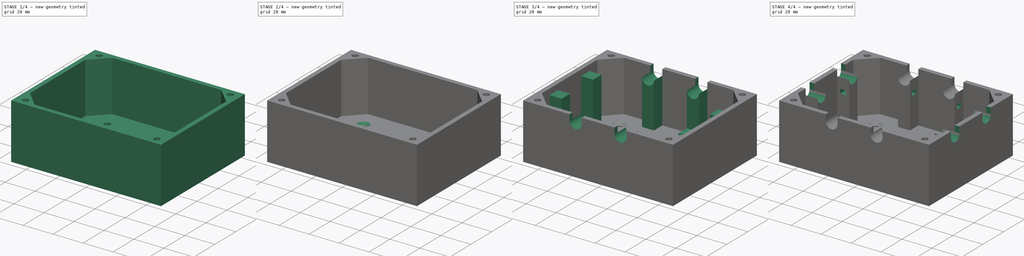
[diagram: build sequence overview — one tinted view per stage of 4, left to right]
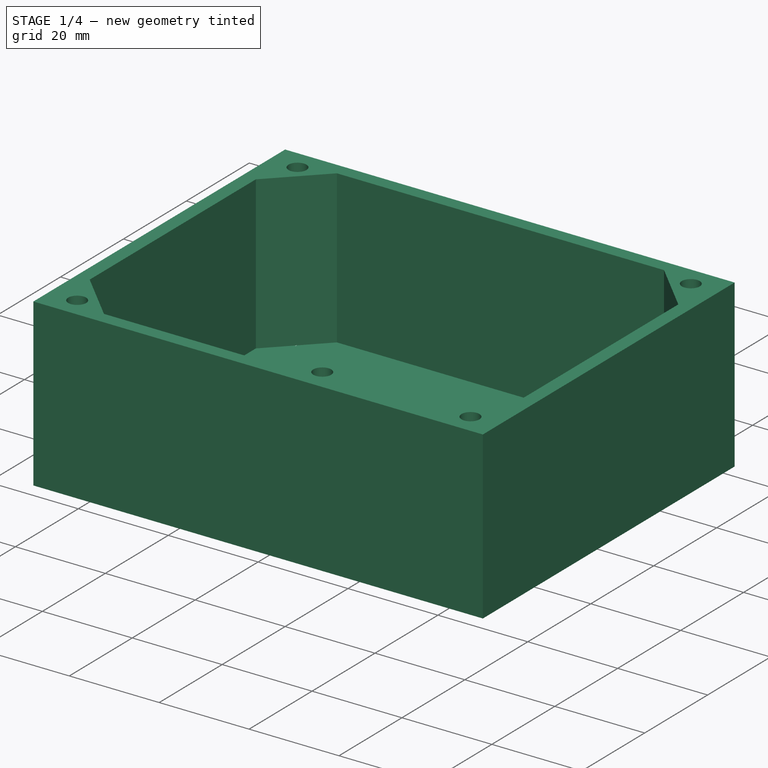
[diagram: stage 1 of 4 — iso view after this stage's code; geometry added in this stage tinted green]
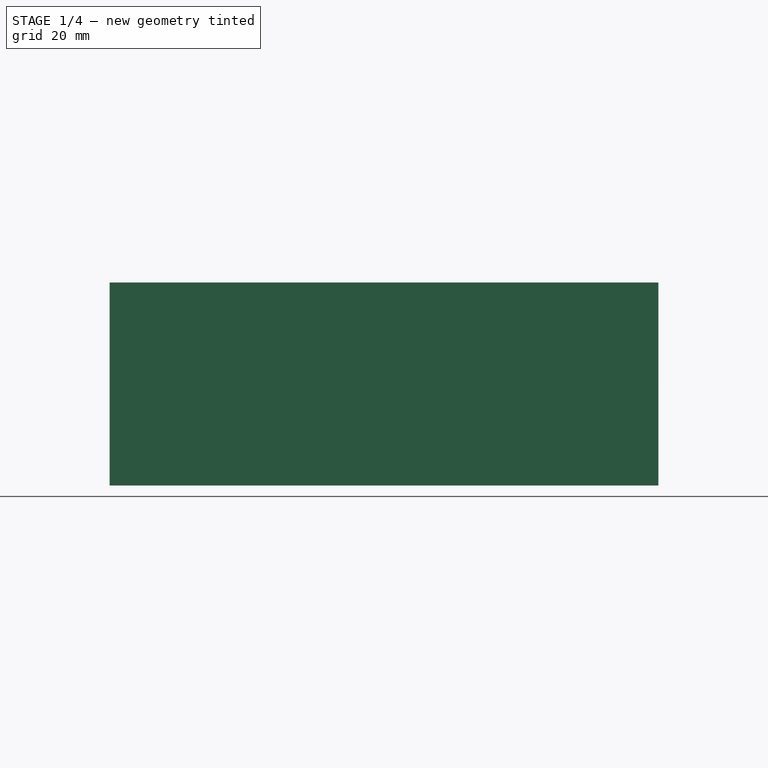
[diagram: stage 1 of 4 — front view after this stage's code; geometry added in this stage tinted green]
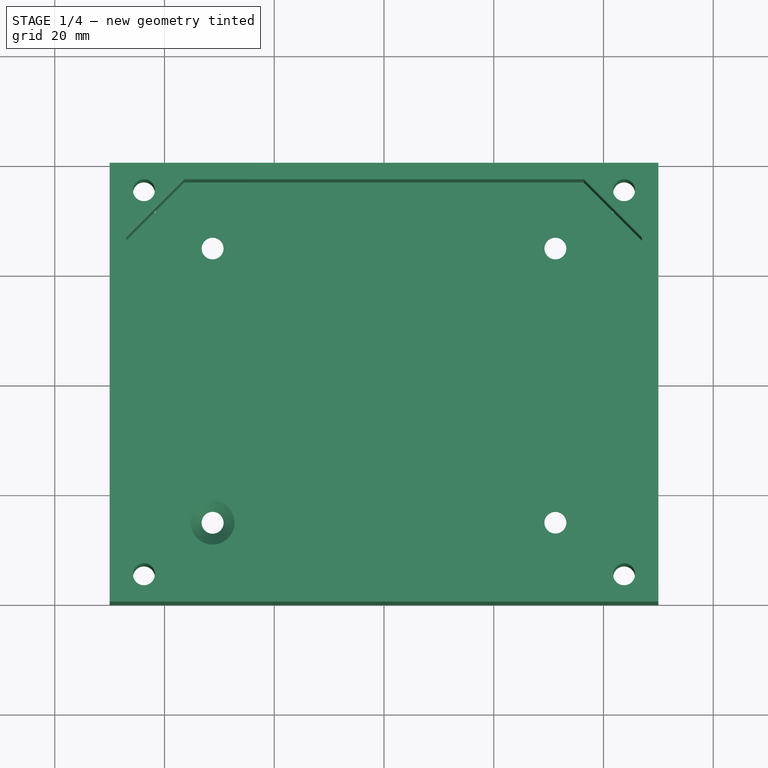
[diagram: stage 1 of 4 — top view after this stage's code; geometry added in this stage tinted green]
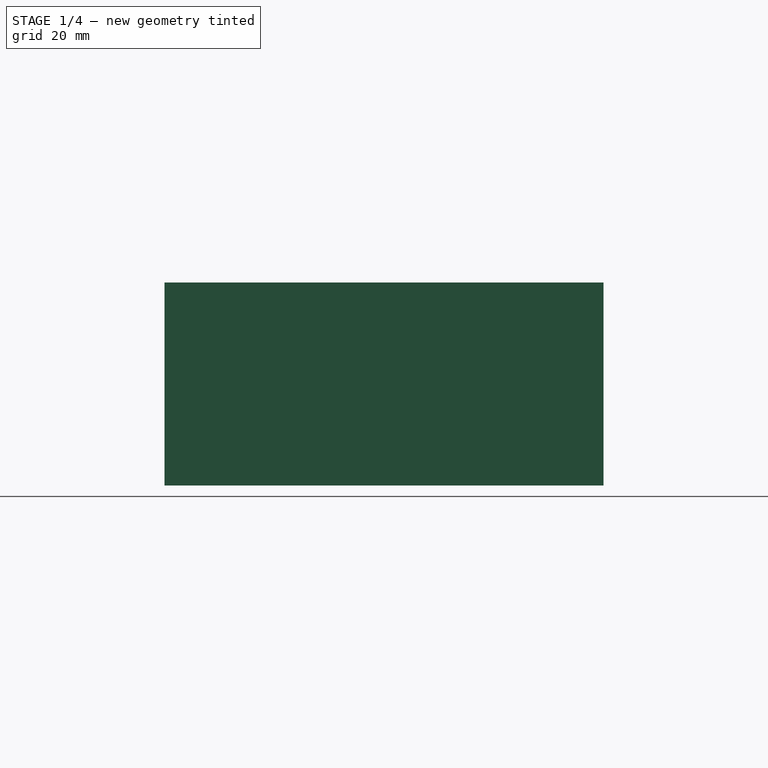
[diagram: stage 1 of 4 — right view after this stage's code; geometry added in this stage tinted green]
FCSTD DOCUMENT  (FreeCAD 1.0R39319 (Git))
Label: junction_box
License: All rights reserved
LicenseURL: http://en.wikipedia.org/wiki/All_rights_reserved
objects: Sketcher::SketchObject×7, PartDesign::Chamfer×4, PartDesign::Pocket×4, PartDesign::Pad×3, PartDesign::Body×1
note: 48 computed .brp shape members not serialized (recipe doc carries the construction recipe); baked Part::Feature solids carry a one-line shape summary decoded from their .brp

FEATURE [Sketcher::SketchObject] Sketch
  ArcFitTolerance = 0
  AttachmentSupport = -> [XY_Plane]
  FullyConstrained = false
  MakeInternals = false
  MapMode = 5
  sketch-geometry (17):
    g0: LineSegment StartX=-50 StartY=-40 StartZ=0 EndX=50 EndY=-40 EndZ=0
    g1: LineSegment StartX=50 StartY=-40 StartZ=0 EndX=50 EndY=40 EndZ=0
    g2: LineSegment StartX=50 StartY=40 StartZ=0 EndX=-50 EndY=40 EndZ=0
    g3: LineSegment StartX=-50 StartY=40 StartZ=0 EndX=-50 EndY=-40 EndZ=0
    g4: LineSegment StartX=-47 StartY=-26.3934 StartZ=0 EndX=-47 EndY=26.3934 EndZ=0
    g5: LineSegment StartX=-47 StartY=26.3934 StartZ=0 EndX=-36.3934 EndY=37 EndZ=0
    g6: LineSegment StartX=-36.3934 StartY=37 StartZ=0 EndX=36.3934 EndY=37 EndZ=0
    g7: LineSegment StartX=36.3934 StartY=37 StartZ=0 EndX=47 EndY=26.3934 EndZ=0
    g8: LineSegment StartX=47 StartY=26.3934 StartZ=0 EndX=47 EndY=-26.3934 EndZ=0
    g9: LineSegment StartX=47 StartY=-26.3934 StartZ=0 EndX=36.3934 EndY=-37 EndZ=0
    g10: LineSegment StartX=36.3934 StartY=-37 StartZ=0 EndX=-36.3934 EndY=-37 EndZ=0
    g11: LineSegment StartX=-36.3934 StartY=-37 StartZ=0 EndX=-47 EndY=-26.3934 EndZ=0
    g12: Circle CenterX=-43.753 CenterY=-35.0024 CenterZ=0 NormalX=0 NormalY=0 NormalZ=1 AngleXU=0 Radius=2
    g13: LineSegment [constr] StartX=0 StartY=0 StartZ=0 EndX=-50 EndY=-40 EndZ=0
    g14: Circle CenterX=43.753 CenterY=35.0024 CenterZ=0 NormalX=0 NormalY=0 NormalZ=1 AngleXU=0 Radius=2
    g15: Circle CenterX=-43.753 CenterY=35.0024 CenterZ=0 NormalX=0 NormalY=0 NormalZ=1 AngleXU=0 Radius=2
    g16: Circle CenterX=43.753 CenterY=-35.0024 CenterZ=0 NormalX=0 NormalY=0 NormalZ=1 AngleXU=0 Radius=2
  constraints (47):
    c: Coincident(g0,g1)
    c: Coincident(g1,g2)
    c: Coincident(g2,g3)
    c: Coincident(g3,g0)
    c: Horizontal(g0)
    c: Horizontal(g2)
    c: Vertical(g1)
    c: Vertical(g3)
    c: Vertical(g4)
    c: Coincident(g4,g5)
    c: Coincident(g5,g6)
    c: Horizontal(g6)
    c: Coincident(g6,g7)
    c: Coincident(g7,g8)
    c: Vertical(g8)
    c: Coincident(g8,g9)
    c: Coincident(g9,g10)
    c: Horizontal(g10)
    c: Coincident(g10,g11)
    c: Coincident(g11,g4)
    c: DistanceX(g0,g0) = 100
    c: DistanceY(g3,g3) = 80
    c: Symmetric(g0,g1,g-1)
    c: Symmetric(g4,g7,g-1)
    c: Parallel(g11,g7)
    c: Parallel(g5,g9)
    c: Perpendicular(g11,g5)
    c: Equal(g8,g4)
    c: Equal(g6,g10)
    c: Angle(g10,g11) = 2.35619
    c: Equal(g5,g11)
    c: Equal(g11,g9)
    c: Equal(g9,g7)
    c: DistanceX(g0,g4) = 3
    c: DistanceY(g0,g10) = 3
    c: Distance(g11) = 15
    c: Radius(g12) = 2
    c: Coincident(g13,g-1)
    c: Coincident(g13,g0)
    c: PointOnObject(g12,g13)
    c: Distance(g0,g12) = 8
    c: Radius(g14) = 2
    c: Symmetric(g14,g12,g-1)
    c: Radius(g15) = 2
    c: Symmetric(g15,g12,g-1)
    c: Radius(g16) = 2
    c: Symmetric(g12,g16,g-2)
FEATURE [PartDesign::Pad] Pad
  AllowMultiFace = false
  Direction = (1,1,1)
  Length = 34
  Length2 = 100
  Profile = -> Sketch
  Suppressed = false
  Type = 0
FEATURE [Sketcher::SketchObject] Sketch001
  ArcFitTolerance = 0
  AttachmentSupport = -> [Pad]
  FullyConstrained = false
  MakeInternals = false
  MapMode = 5
  Placement = pos=(0,0,0) rot=(1,0,0;3.14159rad)
  sketch-geometry (37):
    g0: LineSegment StartX=-50 StartY=-40 StartZ=0 EndX=50 EndY=-40 EndZ=0
    g1: LineSegment StartX=50 StartY=-40 StartZ=0 EndX=50 EndY=40 EndZ=0
    g2: LineSegment StartX=50 StartY=40 StartZ=0 EndX=-50 EndY=40 EndZ=0
    g3: LineSegment StartX=-50 StartY=40 StartZ=0 EndX=-50 EndY=-40 EndZ=0
    g4: LineSegment StartX=-39.7116 StartY=-35.0024 StartZ=0 EndX=-41.7323 EndY=-31.5024 EndZ=0
    g5: LineSegment StartX=-41.7323 StartY=-31.5024 StartZ=0 EndX=-45.7738 EndY=-31.5024 EndZ=0
    g6: LineSegment StartX=-45.7738 StartY=-31.5024 StartZ=0 EndX=-47.7945 EndY=-35.0024 EndZ=0
    g7: LineSegment StartX=-47.7945 StartY=-35.0024 StartZ=0 EndX=-45.7738 EndY=-38.5024 EndZ=0
    g8: LineSegment StartX=-45.7738 StartY=-38.5024 StartZ=0 EndX=-41.7323 EndY=-38.5024 EndZ=0
    g9: LineSegment StartX=-41.7323 StartY=-38.5024 StartZ=0 EndX=-39.7116 EndY=-35.0024 EndZ=0
    g10: Circle [constr] CenterX=-43.753 CenterY=-35.0024 CenterZ=0 NormalX=0 NormalY=0 NormalZ=1 AngleXU=0 Radius=4.04145
    g11: LineSegment [constr] StartX=-50 StartY=-40 StartZ=0 EndX=0 EndY=0 EndZ=0
    g12: LineSegment StartX=47.7945 StartY=35.0024 StartZ=0 EndX=45.7738 EndY=38.5024 EndZ=0
    g13: LineSegment StartX=45.7738 StartY=38.5024 StartZ=0 EndX=41.7323 EndY=38.5024 EndZ=0
    g14: LineSegment StartX=41.7323 StartY=38.5024 StartZ=0 EndX=39.7116 EndY=35.0024 EndZ=0
    g15: LineSegment StartX=39.7116 StartY=35.0024 StartZ=0 EndX=41.7323 EndY=31.5024 EndZ=0
    g16: LineSegment StartX=41.7323 StartY=31.5024 StartZ=0 EndX=45.7738 EndY=31.5024 EndZ=0
    g17: LineSegment StartX=45.7738 StartY=31.5024 StartZ=0 EndX=47.7945 EndY=35.0024 EndZ=0
    g18: Circle [constr] CenterX=43.753 CenterY=35.0024 CenterZ=0 NormalX=0 NormalY=0 NormalZ=1 AngleXU=0 Radius=4.04145
    g19: LineSegment StartX=-39.7116 StartY=35.0024 StartZ=0 EndX=-41.7323 EndY=38.5024 EndZ=0
    g20: LineSegment StartX=-41.7323 StartY=38.5024 StartZ=0 EndX=-45.7738 EndY=38.5024 EndZ=0
    g21: LineSegment StartX=-45.7738 StartY=38.5024 StartZ=0 EndX=-47.7945 EndY=35.0024 EndZ=0
    g22: LineSegment StartX=-47.7945 StartY=35.0024 StartZ=0 EndX=-45.7738 EndY=31.5024 EndZ=0
    g23: LineSegment StartX=-45.7738 StartY=31.5024 StartZ=0 EndX=-41.7323 EndY=31.5024 EndZ=0
    g24: LineSegment StartX=-41.7323 StartY=31.5024 StartZ=0 EndX=-39.7116 EndY=35.0024 EndZ=0
    g25: Circle [constr] CenterX=-43.753 CenterY=35.0024 CenterZ=0 NormalX=0 NormalY=0 NormalZ=1 AngleXU=0 Radius=4.04145
    g26: LineSegment StartX=47.7945 StartY=-35.0024 StartZ=0 EndX=45.7738 EndY=-31.5024 EndZ=0
    g27: LineSegment StartX=45.7738 StartY=-31.5024 StartZ=0 EndX=41.7323 EndY=-31.5024 EndZ=0
    g28: LineSegment StartX=41.7323 StartY=-31.5024 StartZ=0 EndX=39.7116 EndY=-35.0024 EndZ=0
    g29: LineSegment StartX=39.7116 StartY=-35.0024 StartZ=0 EndX=41.7323 EndY=-38.5024 EndZ=0
    g30: LineSegment StartX=41.7323 StartY=-38.5024 StartZ=0 EndX=45.7738 EndY=-38.5024 EndZ=0
    g31: LineSegment StartX=45.7738 StartY=-38.5024 StartZ=0 EndX=47.7945 EndY=-35.0024 EndZ=0
    g32: Circle [constr] CenterX=43.753 CenterY=-35.0024 CenterZ=0 NormalX=0 NormalY=0 NormalZ=1 AngleXU=0 Radius=4.04145
    g33: Circle CenterX=-31.2348 CenterY=-24.9878 CenterZ=0 NormalX=0 NormalY=0 NormalZ=1 AngleXU=0 Radius=2
    g34: Circle CenterX=31.2348 CenterY=24.9878 CenterZ=0 NormalX=0 NormalY=0 NormalZ=1 AngleXU=0 Radius=2
    g35: Circle CenterX=-31.2348 CenterY=24.9878 CenterZ=0 NormalX=0 NormalY=0 NormalZ=1 AngleXU=0 Radius=2
    g36: Circle CenterX=31.2348 CenterY=-24.9878 CenterZ=0 NormalX=0 NormalY=0 NormalZ=1 AngleXU=0 Radius=2
  constraints (87):
    c: Coincident(g0,g1)
    c: Coincident(g1,g2)
    c: Coincident(g2,g3)
    c: Coincident(g3,g0)
    c: Horizontal(g0)
    c: Horizontal(g2)
    c: Vertical(g1)
    c: Vertical(g3)
    c: DistanceX(g0,g0) = 100
    c: DistanceY(g3,g3) = 80
    c: Symmetric(g0,g1,g-1)
    c: Coincident(g4,g5)
    c: Coincident(g5,g6)
    c: Coincident(g6,g7)
    c: Coincident(g7,g8)
    c: Coincident(g8,g9)
    c: Coincident(g9,g4)
    c: Equal(g4, g5-g9) x5
    c: PointOnObject(g4,g10)
    c: PointOnObject(g5,g10)
    c: PointOnObject(g6,g10)
    c: PointOnObject(g7,g10)
    c: PointOnObject(g8,g10)
    c: PointOnObject(g9,g10)
    c: Horizontal(g8)
    c: Coincident(g11,g0)
    c: Coincident(g11,g-1)
    c: PointOnObject(g10,g11)
    c: Distance(g0,g10) = 8
    c: DistanceY(g7,g5) = 7
    c: Coincident(g12,g13)
    c: Coincident(g13,g14)
    c: Coincident(g14,g15)
    c: Coincident(g15,g16)
    c: Coincident(g16,g17)
    c: Coincident(g17,g12)
    c: Equal(g12, g13-g17) x5
    c: PointOnObject(g12,g18)
    c: PointOnObject(g13,g18)
    c: PointOnObject(g14,g18)
    c: PointOnObject(g15,g18)
    c: PointOnObject(g16,g18)
    c: PointOnObject(g17,g18)
    c: Horizontal(g16)
    c: DistanceY(g15,g13) = 7
    c: Symmetric(g18,g10,g-1)
    c: Coincident(g19,g20)
    c: Coincident(g20,g21)
    c: Coincident(g21,g22)
    c: Coincident(g22,g23)
    c: Coincident(g23,g24)
    c: Coincident(g24,g19)
    c: Equal(g19, g20-g24) x5
    c: PointOnObject(g19,g25)
    c: PointOnObject(g20,g25)
    c: PointOnObject(g21,g25)
    c: PointOnObject(g22,g25)
    c: PointOnObject(g23,g25)
    c: PointOnObject(g24,g25)
    c: Coincident(g26,g27)
    c: Coincident(g27,g28)
    c: Coincident(g28,g29)
    c: Coincident(g29,g30)
    c: Coincident(g30,g31)
    c: Coincident(g31,g26)
    c: Equal(g26, g27-g31) x5
    c: PointOnObject(g26,g32)
    c: PointOnObject(g27,g32)
    c: PointOnObject(g28,g32)
    c: PointOnObject(g29,g32)
    c: PointOnObject(g30,g32)
    c: PointOnObject(g31,g32)
    c: Horizontal(g30)
    c: Horizontal(g23)
    c: DistanceY(g22,g20) = 7
    c: DistanceY(g29,g27) = 7
    c: Symmetric(g25,g10,g-1)
    c: Symmetric(g32,g10,g-2)
    c: PointOnObject(g33,g11)
    c: Radius(g33) = 2
    c: Distance(g33,g-1) = 40
    c: Radius(g34) = 2
    c: Symmetric(g33,g34,g-1)
    c: Radius(g36) = 2
    c: Equal(g36,g35)
    c: Symmetric(g33,g36,g-2)
    c: Symmetric(g35,g33,g-1)
FEATURE [PartDesign::Pad] Pad001
  AllowMultiFace = false
  BaseFeature = -> Pad
  Direction = (1,1,1)
  Length = 3
  Length2 = 100
  Profile = -> Sketch001
  Suppressed = false
  Type = 0
FEATURE [PartDesign::Chamfer] Chamfer
  Angle = 45
  Base = -> Pad001 [Edge154]
  BaseFeature = -> Pad001
  ChamferType = 0
  FlipDirection = false
  Refine = true
  Size = 2
  Size2 = 1
  SupportTransform = false
  Suppressed = false
  UseAllEdges = false
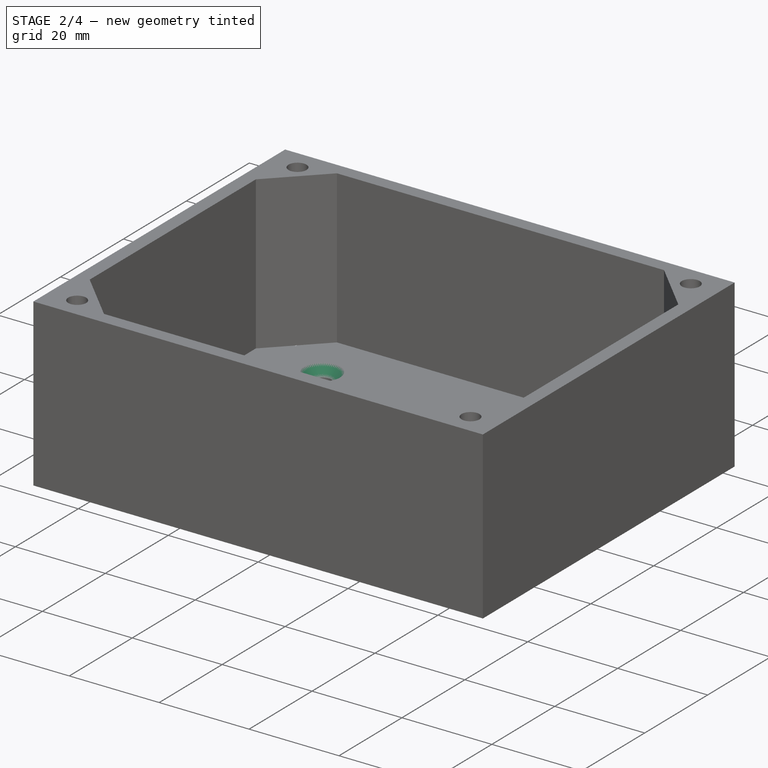
[diagram: stage 2 of 4 — iso view after this stage's code; geometry added in this stage tinted green]
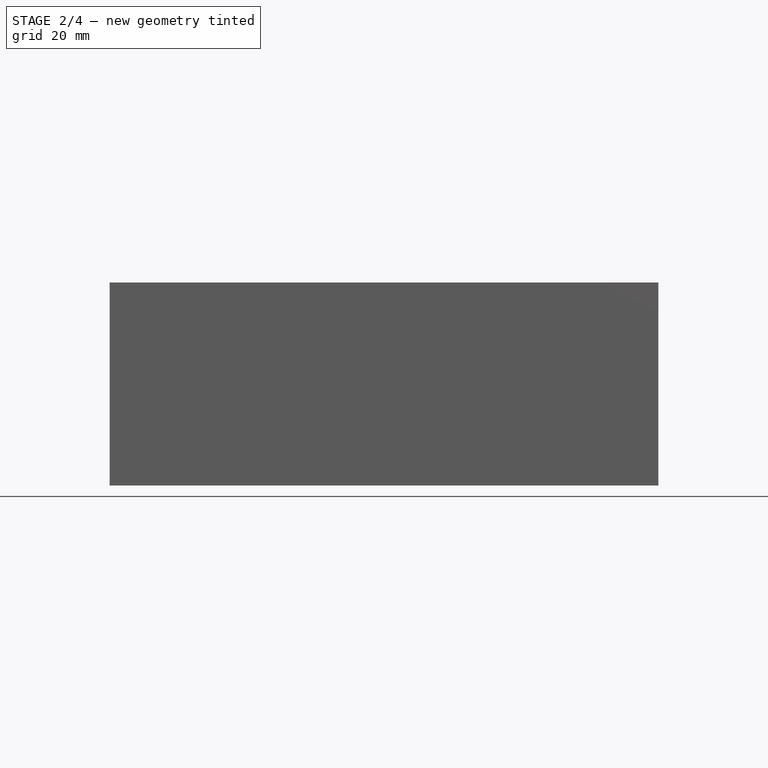
[diagram: stage 2 of 4 — front view after this stage's code; geometry added in this stage tinted green]
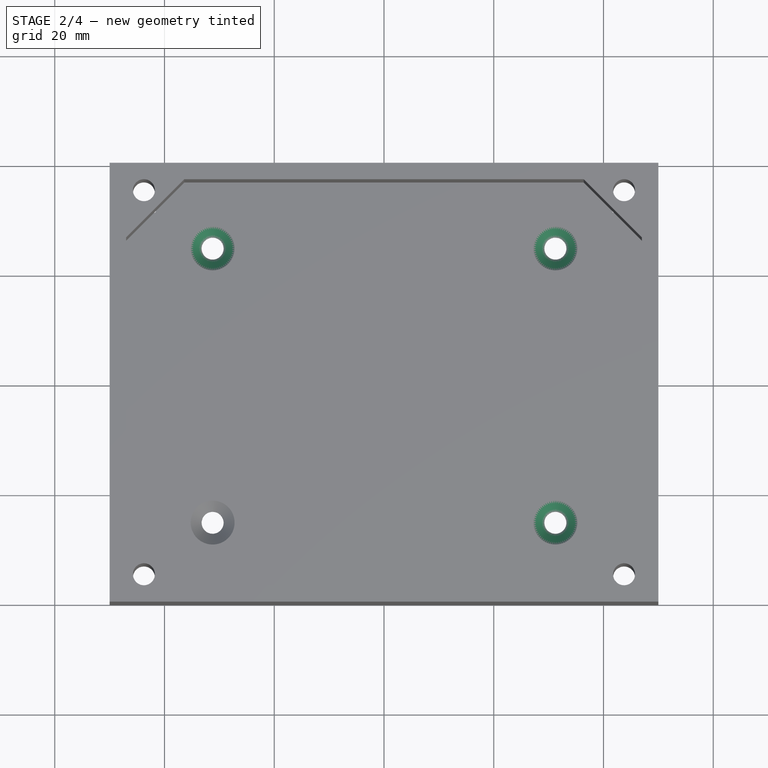
[diagram: stage 2 of 4 — top view after this stage's code; geometry added in this stage tinted green]
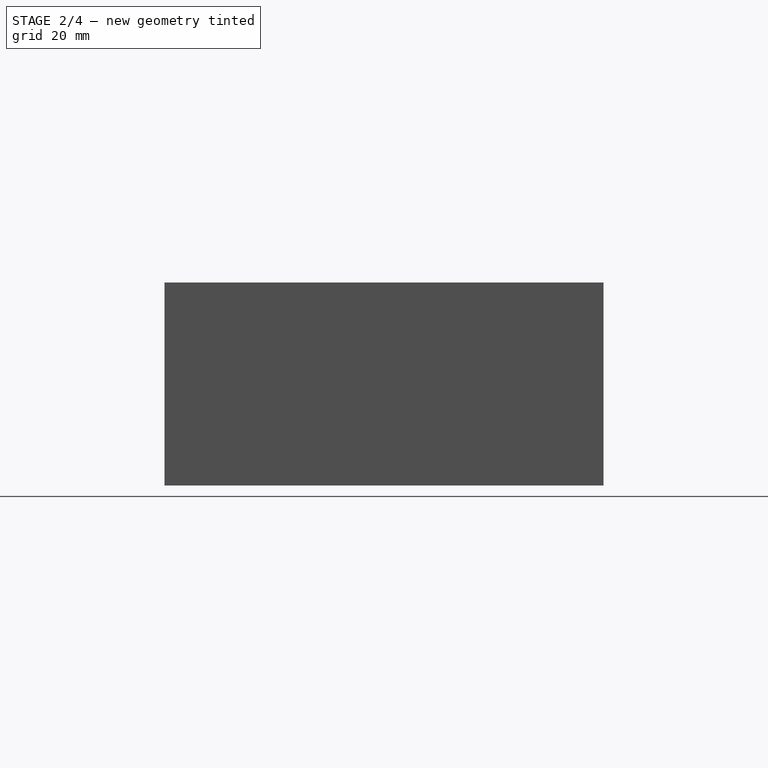
[diagram: stage 2 of 4 — right view after this stage's code; geometry added in this stage tinted green]
FEATURE [PartDesign::Chamfer] Chamfer001
  Angle = 45
  Base = -> Chamfer [Edge59]
  BaseFeature = -> Chamfer
  ChamferType = 0
  FlipDirection = false
  Refine = true
  Size = 2
  Size2 = 1
  SupportTransform = false
  Suppressed = false
  UseAllEdges = false
FEATURE [PartDesign::Chamfer] Chamfer002
  Angle = 45
  Base = -> Chamfer001 [Edge24]
  BaseFeature = -> Chamfer001
  ChamferType = 0
  FlipDirection = false
  Refine = true
  Size = 2
  Size2 = 1
  SupportTransform = false
  Suppressed = false
  UseAllEdges = false
FEATURE [PartDesign::Chamfer] Chamfer003
  Angle = 45
  Base = -> Chamfer002 [Edge24]
  BaseFeature = -> Chamfer002
  ChamferType = 0
  FlipDirection = false
  Refine = true
  Size = 2
  Size2 = 1
  SupportTransform = false
  Suppressed = false
  UseAllEdges = false
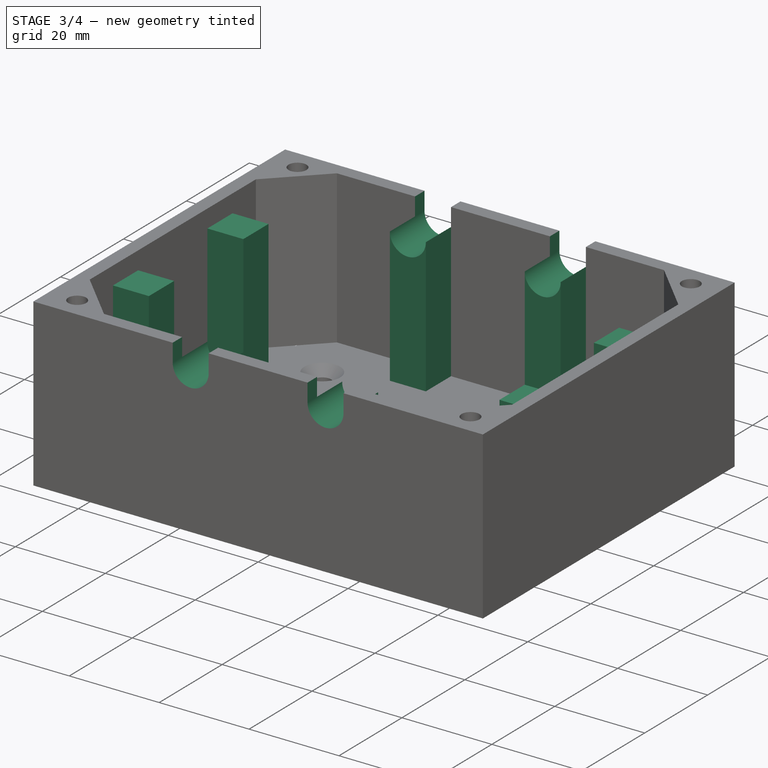
[diagram: stage 3 of 4 — iso view after this stage's code; geometry added in this stage tinted green]
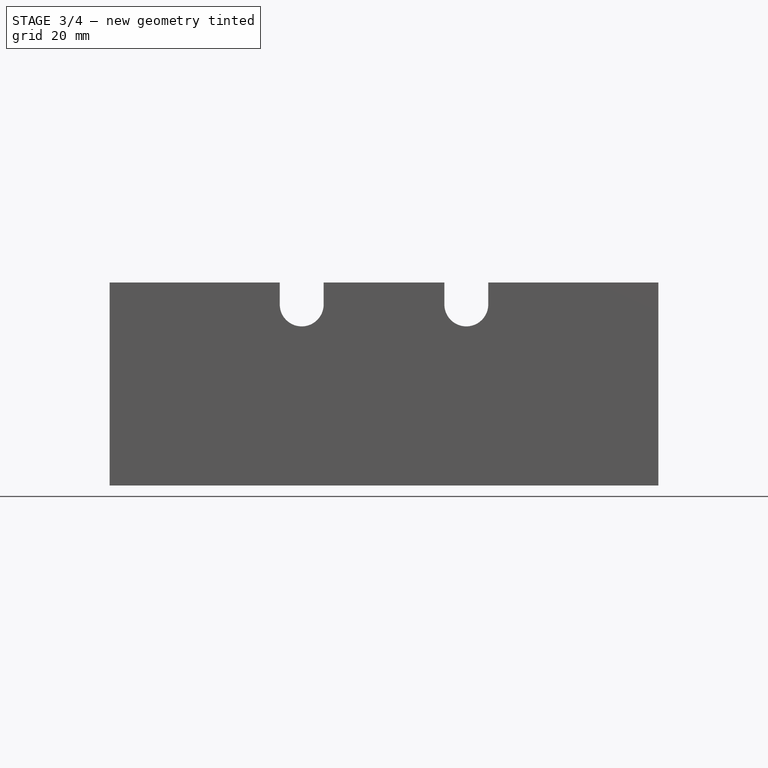
[diagram: stage 3 of 4 — front view after this stage's code; geometry added in this stage tinted green]
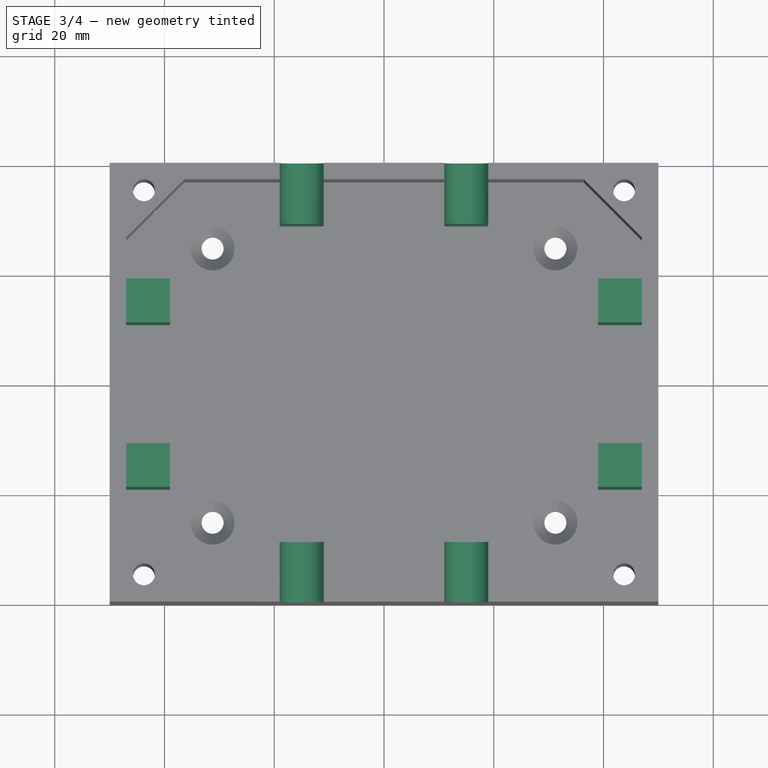
[diagram: stage 3 of 4 — top view after this stage's code; geometry added in this stage tinted green]
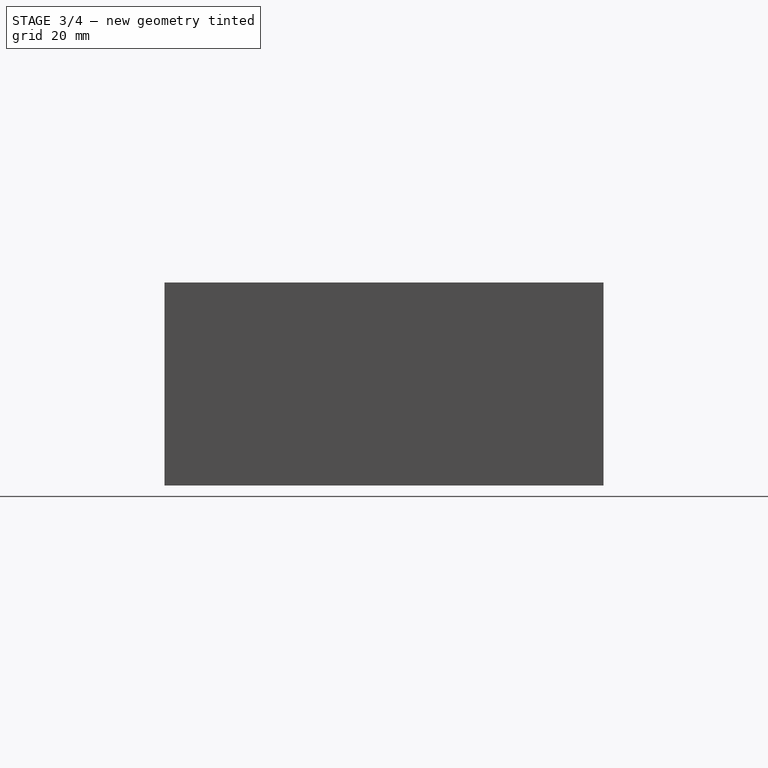
[diagram: stage 3 of 4 — right view after this stage's code; geometry added in this stage tinted green]
FEATURE [Sketcher::SketchObject] Sketch004
  ArcFitTolerance = 0
  AttachmentSupport = -> [Chamfer003]
  FullyConstrained = false
  MakeInternals = false
  MapMode = 5
  sketch-geometry (32):
    g0: LineSegment StartX=-19 StartY=-40 StartZ=0 EndX=-11 EndY=-40 EndZ=0
    g1: LineSegment StartX=-11 StartY=-40 StartZ=0 EndX=-11 EndY=-29 EndZ=0
    g2: LineSegment StartX=-11 StartY=-29 StartZ=0 EndX=-19 EndY=-29 EndZ=0
    g3: LineSegment StartX=-19 StartY=-29 StartZ=0 EndX=-19 EndY=-40 EndZ=0
    g4: LineSegment StartX=19 StartY=40 StartZ=0 EndX=11 EndY=40 EndZ=0
    g5: LineSegment StartX=11 StartY=40 StartZ=0 EndX=11 EndY=29 EndZ=0
    g6: LineSegment StartX=11 StartY=29 StartZ=0 EndX=19 EndY=29 EndZ=0
    g7: LineSegment StartX=19 StartY=29 StartZ=0 EndX=19 EndY=40 EndZ=0
    g8: LineSegment StartX=19 StartY=-40 StartZ=0 EndX=11 EndY=-40 EndZ=0
    g9: LineSegment StartX=11 StartY=-40 StartZ=0 EndX=11 EndY=-29 EndZ=0
    g10: LineSegment StartX=11 StartY=-29 StartZ=0 EndX=19 EndY=-29 EndZ=0
    g11: LineSegment StartX=19 StartY=-29 StartZ=0 EndX=19 EndY=-40 EndZ=0
    g12: LineSegment StartX=-19 StartY=40 StartZ=0 EndX=-11 EndY=40 EndZ=0
    g13: LineSegment StartX=-11 StartY=40 StartZ=0 EndX=-11 EndY=29 EndZ=0
    g14: LineSegment StartX=-11 StartY=29 StartZ=0 EndX=-19 EndY=29 EndZ=0
    g15: LineSegment StartX=-19 StartY=29 StartZ=0 EndX=-19 EndY=40 EndZ=0
    g16: LineSegment StartX=-50 StartY=11 StartZ=0 EndX=-39 EndY=11 EndZ=0
    g17: LineSegment StartX=-39 StartY=11 StartZ=0 EndX=-39 EndY=19 EndZ=0
    g18: LineSegment StartX=-39 StartY=19 StartZ=0 EndX=-50 EndY=19 EndZ=0
    g19: LineSegment StartX=-50 StartY=19 StartZ=0 EndX=-50 EndY=11 EndZ=0
    g20: LineSegment StartX=50 StartY=11 StartZ=0 EndX=39 EndY=11 EndZ=0
    g21: LineSegment StartX=39 StartY=11 StartZ=0 EndX=39 EndY=19 EndZ=0
    g22: LineSegment StartX=39 StartY=19 StartZ=0 EndX=50 EndY=19 EndZ=0
    g23: LineSegment StartX=50 StartY=19 StartZ=0 EndX=50 EndY=11 EndZ=0
    g24: LineSegment StartX=50 StartY=-11 StartZ=0 EndX=39 EndY=-11 EndZ=0
    g25: LineSegment StartX=39 StartY=-11 StartZ=0 EndX=39 EndY=-19 EndZ=0
    g26: LineSegment StartX=39 StartY=-19 StartZ=0 EndX=50 EndY=-19 EndZ=0
    g27: LineSegment StartX=50 StartY=-19 StartZ=0 EndX=50 EndY=-11 EndZ=0
    g28: LineSegment StartX=-50 StartY=-19 StartZ=0 EndX=-39 EndY=-19 EndZ=0
    g29: LineSegment StartX=-39 StartY=-19 StartZ=0 EndX=-39 EndY=-11 EndZ=0
    g30: LineSegment StartX=-39 StartY=-11 StartZ=0 EndX=-50 EndY=-11 EndZ=0
    g31: LineSegment StartX=-50 StartY=-11 StartZ=0 EndX=-50 EndY=-19 EndZ=0
  constraints (94):
    c: Coincident(g0,g1)
    c: Coincident(g1,g2)
    c: Coincident(g2,g3)
    c: Coincident(g3,g0)
    c: Horizontal(g0)
    c: Horizontal(g2)
    c: Vertical(g1)
    c: Vertical(g3)
    c: DistanceX(g2,g2) = 8
    c: DistanceY(g1,g1) = 11
    c: DistanceX(g1,g-1) = 11
    c: DistanceY(g0,g-1) = 40
    c: Coincident(g4,g5)
    c: Coincident(g5,g6)
    c: Coincident(g6,g7)
    c: Coincident(g7,g4)
    c: Horizontal(g4)
    c: Horizontal(g6)
    c: Vertical(g5)
    c: Vertical(g7)
    c: Coincident(g8,g9)
    c: Coincident(g9,g10)
    c: Coincident(g10,g11)
    c: Coincident(g11,g8)
    c: Horizontal(g8)
    c: Horizontal(g10)
    c: Vertical(g9)
    c: Vertical(g11)
    c: Coincident(g12,g13)
    c: Coincident(g13,g14)
    c: Coincident(g14,g15)
    c: Coincident(g15,g12)
    c: Horizontal(g12)
    c: Horizontal(g14)
    c: Vertical(g13)
    c: Vertical(g15)
    c: Equal(g14,g0)
    c: Equal(g0,g8)
    c: Equal(g8,g6)
    c: Equal(g15,g3)
    c: Equal(g3,g9)
    c: Equal(g9,g5)
    c: Symmetric(g5,g1,g-1)
    c: Symmetric(g0,g8,g-2)
    c: Symmetric(g2,g14,g-1)
    c: Coincident(g16,g17)
    c: Coincident(g17,g18)
    c: Coincident(g18,g19)
    c: Coincident(g19,g16)
    c: Horizontal(g16)
    c: Horizontal(g18)
    c: Vertical(g17)
    c: Vertical(g19)
    c: Coincident(g20,g21)
    c: Coincident(g21,g22)
    c: Coincident(g22,g23)
    c: Coincident(g23,g20)
    c: Horizontal(g20)
    c: Horizontal(g22)
    c: Vertical(g21)
    c: Vertical(g23)
    c: Coincident(g24,g25)
    c: Coincident(g25,g26)
    c: Coincident(g26,g27)
    c: Coincident(g27,g24)
    c: Horizontal(g24)
    c: Horizontal(g26)
    c: Vertical(g25)
    c: Vertical(g27)
    c: Symmetric(g17,g21,g-2)
    c: Equal(g16,g20)
    c: Equal(g20,g26)
    c: Equal(g27,g23)
    c: Equal(g23,g17)
    c: Coincident(g28,g29)
    c: Coincident(g29,g30)
    c: Coincident(g30,g31)
    c: Coincident(g31,g28)
    c: Horizontal(g28)
    c: Horizontal(g30)
    c: Vertical(g29)
    c: Vertical(g31)
    c: Equal(g30,g3)
    c: Equal(g29,g2)
    c: DistanceX(g30,g-1) = 50
    c: DistanceY(g30,g-1) = 11
    c: Equal(g28,g16)
    c: Equal(g16,g20)
    c: Equal(g20,g26)
    c: Equal(g29,g17)
    c: Equal(g17,g23)
    c: Equal(g23,g27)
    c: Symmetric(g29,g16,g-1)
    c: Symmetric(g25,g28,g-2)
FEATURE [PartDesign::Pad] Pad002
  AllowMultiFace = false
  BaseFeature = -> Chamfer003
  Direction = (1,1,1)
  Length = 30
  Length2 = 100
  Profile = -> Sketch004
  Suppressed = false
  Type = 0
FEATURE [Sketcher::SketchObject] Sketch002
  ArcFitTolerance = 0
  AttachmentSupport = -> [Pad002]
  FullyConstrained = false
  MakeInternals = false
  MapMode = 5
  Placement = pos=(0,-40,0) rot=(1,0,0;1.5708rad)
  sketch-geometry (10):
    g0: LineSegment StartX=-19 StartY=34 StartZ=0 EndX=-19 EndY=30 EndZ=0
    g1: LineSegment StartX=-11 StartY=34 StartZ=0 EndX=-11 EndY=30 EndZ=0
    g2: LineSegment StartX=-11 StartY=34 StartZ=0 EndX=-19 EndY=34 EndZ=0
    g3: ArcOfCircle CenterX=-15 CenterY=30 CenterZ=0 NormalX=0 NormalY=0 NormalZ=1 AngleXU=0 Radius=4 StartAngle=3.14159 EndAngle=6.28319
    g4: LineSegment [constr] StartX=-11 StartY=30 StartZ=0 EndX=-19 EndY=30 EndZ=0
    g5: LineSegment StartX=19 StartY=34 StartZ=0 EndX=19 EndY=30 EndZ=0
    g6: LineSegment StartX=11 StartY=34 StartZ=0 EndX=11 EndY=30 EndZ=0
    g7: LineSegment StartX=11 StartY=34 StartZ=0 EndX=19 EndY=34 EndZ=0
    g8: ArcOfCircle CenterX=15 CenterY=30 CenterZ=0 NormalX=0 NormalY=0 NormalZ=1 AngleXU=0 Radius=4 StartAngle=3.14159 EndAngle=6.28319
    g9: LineSegment [constr] StartX=11 StartY=30 StartZ=0 EndX=19 EndY=30 EndZ=0
  constraints (29):
    c: Vertical(g0)
    c: Vertical(g1)
    c: DistanceY(g-1,g1) = 34
    c: Coincident(g2,g1)
    c: Coincident(g2,g0)
    c: Horizontal(g2)
    c: Equal(g1,g0)
    c: DistanceX(g2,g2) = 8
    c: Coincident(g3,g0)
    c: Coincident(g3,g1)
    c: Coincident(g4,g1)
    c: Coincident(g4,g0)
    c: PointOnObject(g3,g4)
    c: DistanceY(g0,g0) = 4
    c: DistanceX(g3,g-1) = 15
    c: Vertical(g5)
    c: Vertical(g6)
    c: Coincident(g7,g6)
    c: Coincident(g7,g5)
    c: Horizontal(g7)
    c: Equal(g6,g5)
    c: Coincident(g8,g5)
    c: Coincident(g8,g6)
    c: Coincident(g9,g6)
    c: Coincident(g9,g5)
    c: PointOnObject(g8,g9)
    c: Equal(g9,g4)
    c: Symmetric(g8,g3,g-2)
    c: Equal(g6,g1)
FEATURE [PartDesign::Pocket] Pocket
  AllowMultiFace = false
  BaseFeature = -> Pad002
  Direction = (1,1,1)
  Length = 5
  Length2 = 100
  Profile = -> Sketch002
  Suppressed = false
  Type = 1
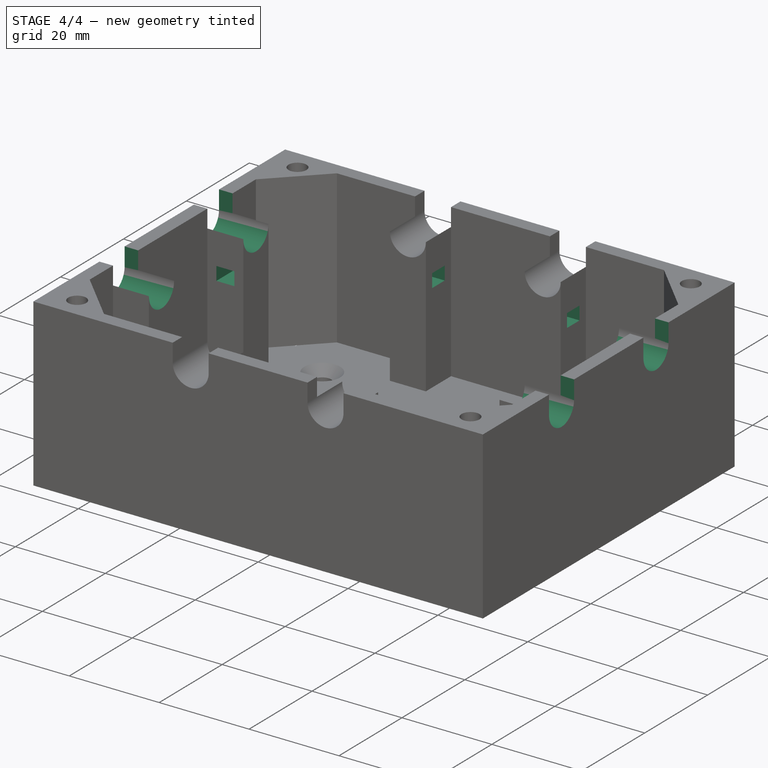
[diagram: stage 4 of 4 — iso view after this stage's code; geometry added in this stage tinted green]
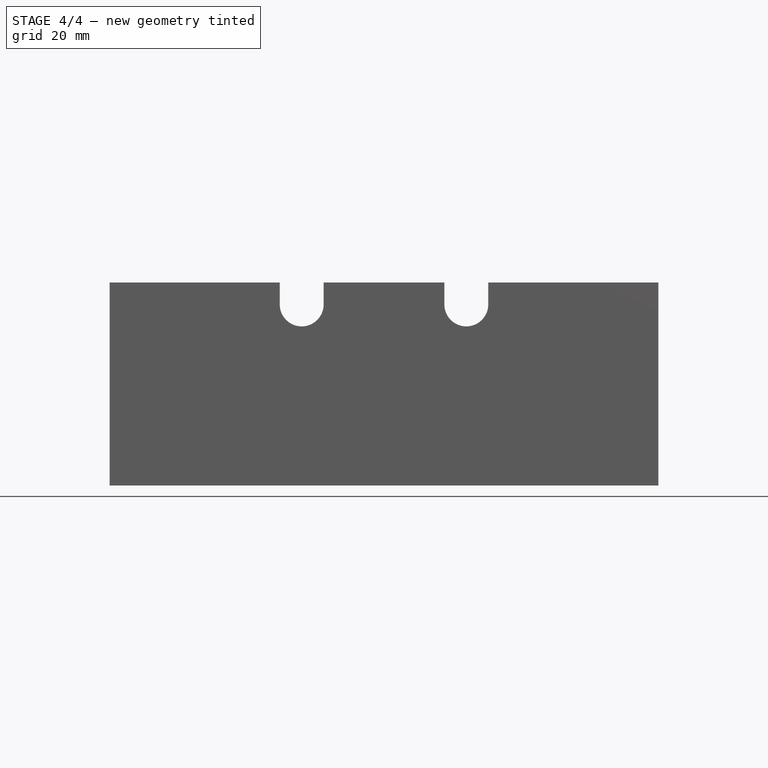
[diagram: stage 4 of 4 — front view after this stage's code; geometry added in this stage tinted green]
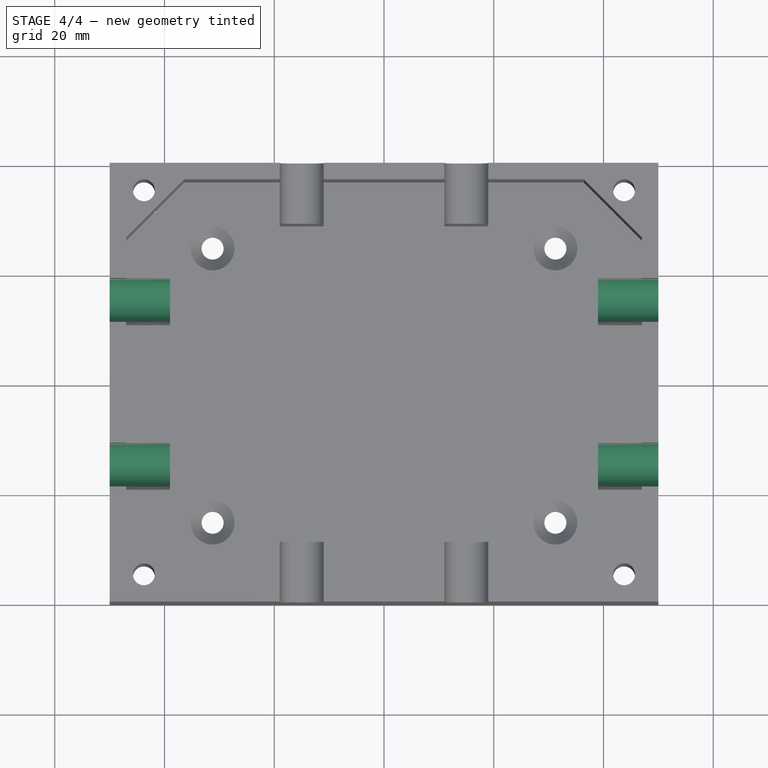
[diagram: stage 4 of 4 — top view after this stage's code; geometry added in this stage tinted green]
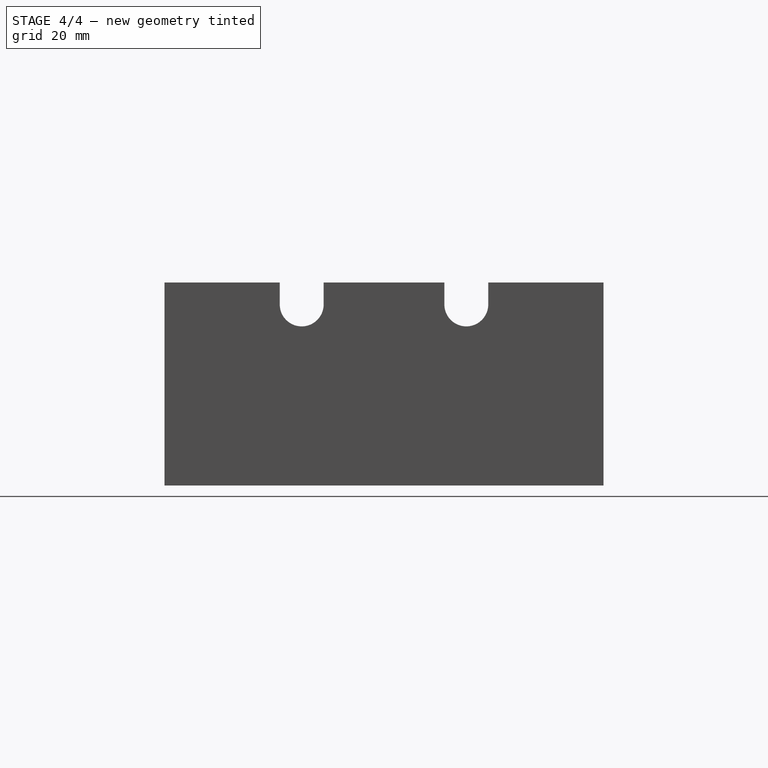
[diagram: stage 4 of 4 — right view after this stage's code; geometry added in this stage tinted green]
FEATURE [Sketcher::SketchObject] Sketch003
  ArcFitTolerance = 0
  AttachmentSupport = -> [Pocket]
  FullyConstrained = false
  MakeInternals = false
  MapMode = 5
  Placement = pos=(-50,0,0) rot=(0.57735,-0.57735,-0.57735;2.0944rad)
  sketch-geometry (10):
    g0: LineSegment StartX=-19 StartY=34 StartZ=0 EndX=-19 EndY=30 EndZ=0
    g1: LineSegment StartX=-11 StartY=34 StartZ=0 EndX=-11 EndY=30 EndZ=0
    g2: LineSegment StartX=-11 StartY=34 StartZ=0 EndX=-19 EndY=34 EndZ=0
    g3: ArcOfCircle CenterX=-15 CenterY=30 CenterZ=0 NormalX=0 NormalY=0 NormalZ=1 AngleXU=0 Radius=4 StartAngle=3.14159 EndAngle=6.28319
    g4: LineSegment [constr] StartX=-11 StartY=30 StartZ=0 EndX=-19 EndY=30 EndZ=0
    g5: LineSegment StartX=19 StartY=34 StartZ=0 EndX=19 EndY=30 EndZ=0
    g6: LineSegment StartX=11 StartY=34 StartZ=0 EndX=11 EndY=30 EndZ=0
    g7: LineSegment StartX=11 StartY=34 StartZ=0 EndX=19 EndY=34 EndZ=0
    g8: ArcOfCircle CenterX=15 CenterY=30 CenterZ=0 NormalX=0 NormalY=0 NormalZ=1 AngleXU=0 Radius=4 StartAngle=3.14159 EndAngle=6.28319
    g9: LineSegment [constr] StartX=11 StartY=30 StartZ=0 EndX=19 EndY=30 EndZ=0
  constraints (29):
    c: Vertical(g0)
    c: Vertical(g1)
    c: DistanceY(g-1,g1) = 34
    c: Coincident(g2,g1)
    c: Coincident(g2,g0)
    c: Horizontal(g2)
    c: Equal(g1,g0)
    c: DistanceX(g2,g2) = 8
    c: Coincident(g3,g0)
    c: Coincident(g3,g1)
    c: Coincident(g4,g1)
    c: Coincident(g4,g0)
    c: PointOnObject(g3,g4)
    c: DistanceY(g0,g0) = 4
    c: DistanceX(g3,g-1) = 15
    c: Vertical(g5)
    c: Vertical(g6)
    c: Coincident(g7,g6)
    c: Coincident(g7,g5)
    c: Horizontal(g7)
    c: Equal(g6,g5)
    c: Coincident(g8,g5)
    c: Coincident(g8,g6)
    c: Coincident(g9,g6)
    c: Coincident(g9,g5)
    c: PointOnObject(g8,g9)
    c: Equal(g9,g4)
    c: Symmetric(g8,g3,g-2)
    c: Equal(g6,g1)
FEATURE [PartDesign::Pocket] Pocket001
  AllowMultiFace = false
  BaseFeature = -> Pocket
  Direction = (1,1,1)
  Length = 5
  Length2 = 100
  Profile = -> Sketch003
  Suppressed = false
  Type = 1
FEATURE [Sketcher::SketchObject] Sketch005
  ArcFitTolerance = 0
  AttachmentSupport = -> [Pocket001]
  FullyConstrained = false
  MakeInternals = false
  MapMode = 5
  Placement = pos=(0,-19,0) rot=(1,0,0;1.5708rad)
  sketch-geometry (8):
    g0: LineSegment StartX=-45 StartY=23 StartZ=0 EndX=-41 EndY=23 EndZ=0
    g1: LineSegment StartX=-41 StartY=23 StartZ=0 EndX=-41 EndY=20 EndZ=0
    g2: LineSegment StartX=-41 StartY=20 StartZ=0 EndX=-45 EndY=20 EndZ=0
    g3: LineSegment StartX=-45 StartY=20 StartZ=0 EndX=-45 EndY=23 EndZ=0
    g4: LineSegment StartX=45 StartY=23 StartZ=0 EndX=41 EndY=23 EndZ=0
    g5: LineSegment StartX=41 StartY=23 StartZ=0 EndX=41 EndY=20 EndZ=0
    g6: LineSegment StartX=41 StartY=20 StartZ=0 EndX=45 EndY=20 EndZ=0
    g7: LineSegment StartX=45 StartY=20 StartZ=0 EndX=45 EndY=23 EndZ=0
  constraints (23):
    c: Coincident(g0,g1)
    c: Coincident(g1,g2)
    c: Coincident(g2,g3)
    c: Coincident(g3,g0)
    c: Horizontal(g0)
    c: Horizontal(g2)
    c: Vertical(g1)
    c: Vertical(g3)
    c: DistanceX(g2,g2) = 4
    c: DistanceY(g1,g1) = 3
    c: DistanceY(g-1,g1) = 20
    c: DistanceX(g2,g-1) = 45
    c: Coincident(g4,g5)
    c: Coincident(g5,g6)
    c: Coincident(g6,g7)
    c: Coincident(g7,g4)
    c: Horizontal(g4)
    c: Horizontal(g6)
    c: Vertical(g5)
    c: Vertical(g7)
    c: Symmetric(g5,g1,g-2)
    c: Equal(g4,g0)
    c: Equal(g1,g5)
FEATURE [PartDesign::Pocket] Pocket002
  AllowMultiFace = false
  BaseFeature = -> Pocket001
  Direction = (1,1,1)
  Length = 46
  Length2 = 100
  Profile = -> Sketch005
  Suppressed = false
  Type = 0
FEATURE [Sketcher::SketchObject] Sketch006
  ArcFitTolerance = 0
  AttachmentSupport = -> [Pocket002]
  FullyConstrained = false
  MakeInternals = false
  MapMode = 5
  Placement = pos=(-19,0,0) rot=(0.57735,-0.57735,-0.57735;2.0944rad)
  sketch-geometry (8):
    g0: LineSegment StartX=-35 StartY=23 StartZ=0 EndX=-31 EndY=23 EndZ=0
    g1: LineSegment StartX=-31 StartY=23 StartZ=0 EndX=-31 EndY=20 EndZ=0
    g2: LineSegment StartX=-31 StartY=20 StartZ=0 EndX=-35 EndY=20 EndZ=0
    g3: LineSegment StartX=-35 StartY=20 StartZ=0 EndX=-35 EndY=23 EndZ=0
    g4: LineSegment StartX=35 StartY=23 StartZ=0 EndX=31 EndY=23 EndZ=0
    g5: LineSegment StartX=31 StartY=23 StartZ=0 EndX=31 EndY=20 EndZ=0
    g6: LineSegment StartX=31 StartY=20 StartZ=0 EndX=35 EndY=20 EndZ=0
    g7: LineSegment StartX=35 StartY=20 StartZ=0 EndX=35 EndY=23 EndZ=0
  constraints (23):
    c: Coincident(g0,g1)
    c: Coincident(g1,g2)
    c: Coincident(g2,g3)
    c: Coincident(g3,g0)
    c: Horizontal(g0)
    c: Horizontal(g2)
    c: Vertical(g1)
    c: Vertical(g3)
    c: DistanceX(g2,g2) = 4
    c: DistanceY(g1,g1) = 3
    c: DistanceY(g-1,g1) = 20
    c: DistanceX(g2,g-1) = 35
    c: Coincident(g4,g5)
    c: Coincident(g5,g6)
    c: Coincident(g6,g7)
    c: Coincident(g7,g4)
    c: Horizontal(g4)
    c: Horizontal(g6)
    c: Vertical(g5)
    c: Vertical(g7)
    c: Symmetric(g5,g1,g-2)
    c: Equal(g4,g0)
    c: Equal(g1,g5)
FEATURE [PartDesign::Pocket] Pocket003
  AllowMultiFace = false
  BaseFeature = -> Pocket002
  Direction = (1,1,1)
  Length = 45
  Length2 = 100
  Profile = -> Sketch006
  Suppressed = false
  Type = 0
FEATURE [PartDesign::Body] Body
  AllowCompound = false
  Group = -> [Sketch,Pad,Sketch001,Pad001,Chamfer,Chamfer001,Chamfer002,Chamfer003,Sketch002,Sketch003,Sketch004,Pad002,Pocket,Pocket001,Sketch005,Pocket002,Sketch006,Pocket003]
  Origin = -> Origin
  Tip = -> Pocket003
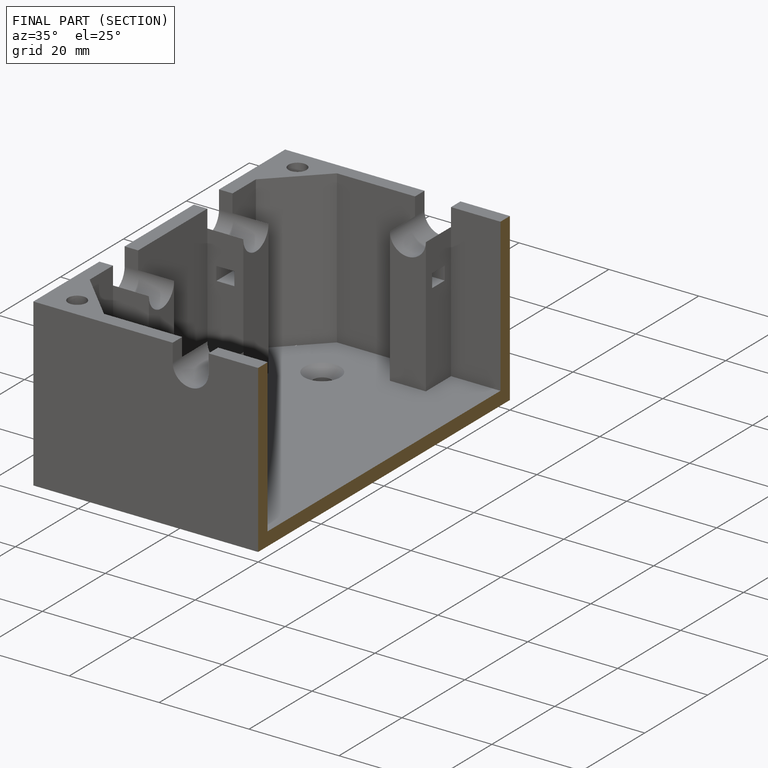
[diagram: finished part — half-section view (interior)]
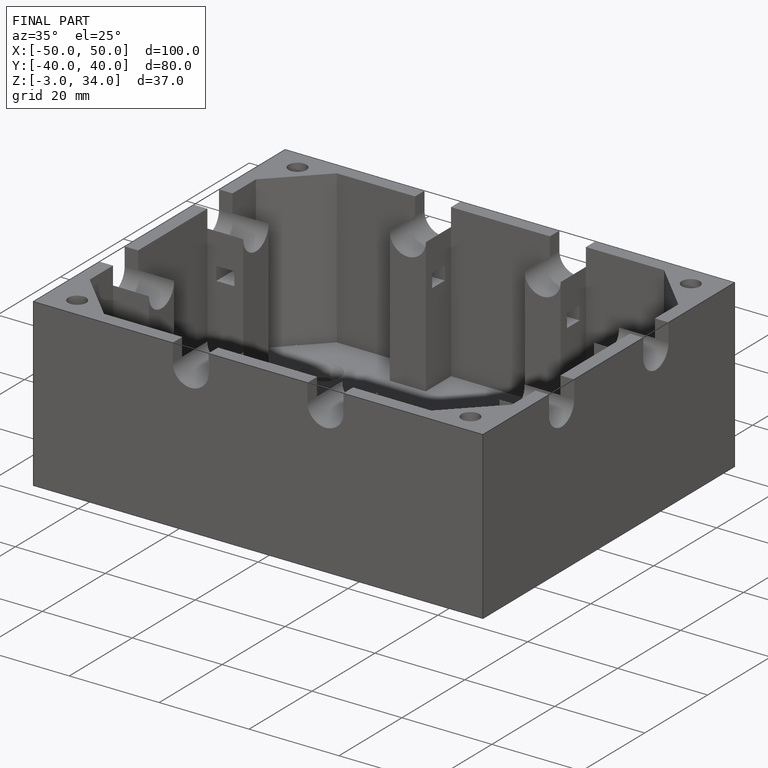
[diagram: finished part — iso view with bounding-box wireframe]
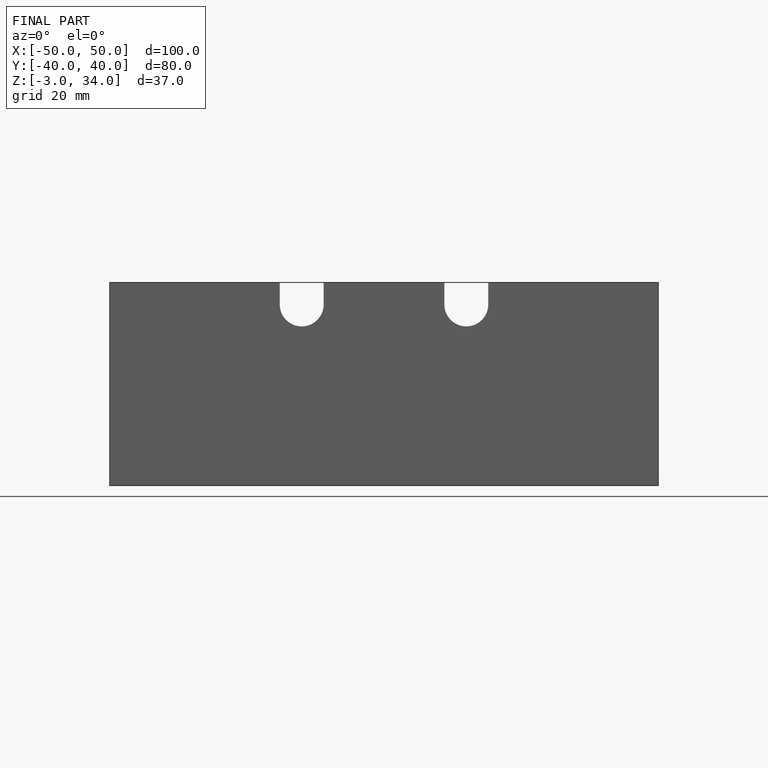
[diagram: finished part — front view with bounding-box wireframe]
